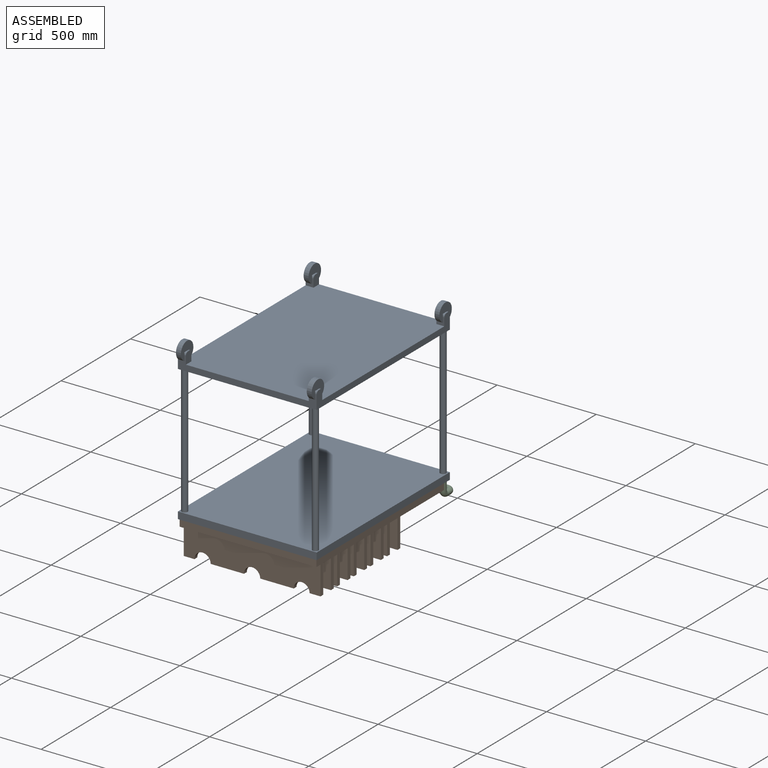
[diagram: assembled view]
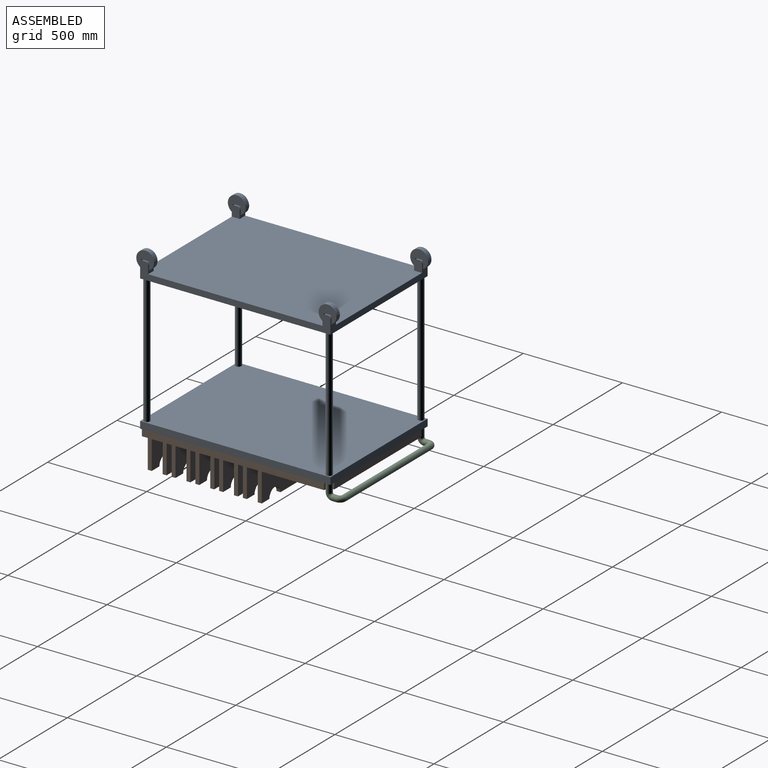
[diagram: assembled view, second angle]
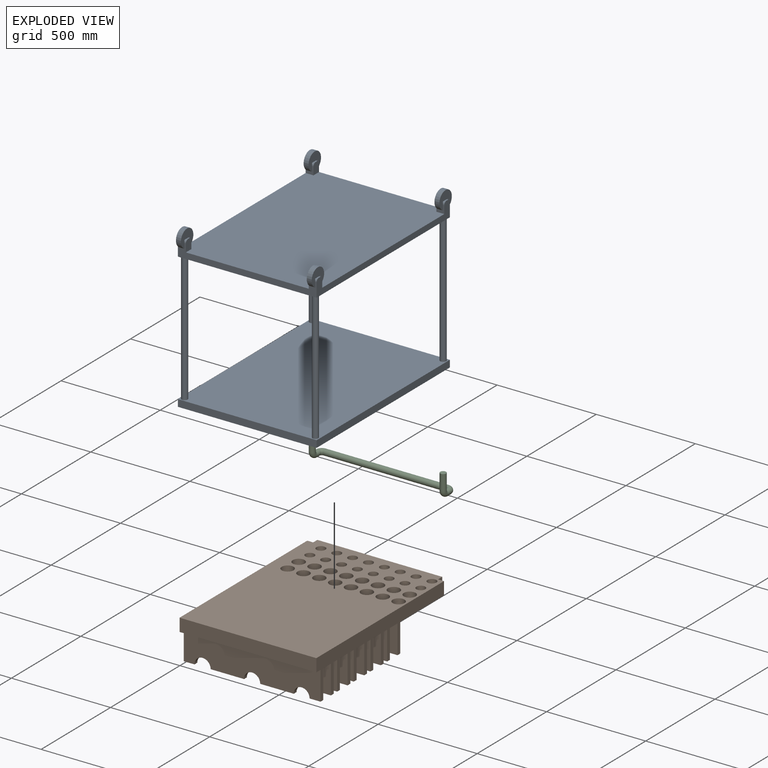
[diagram: exploded view]
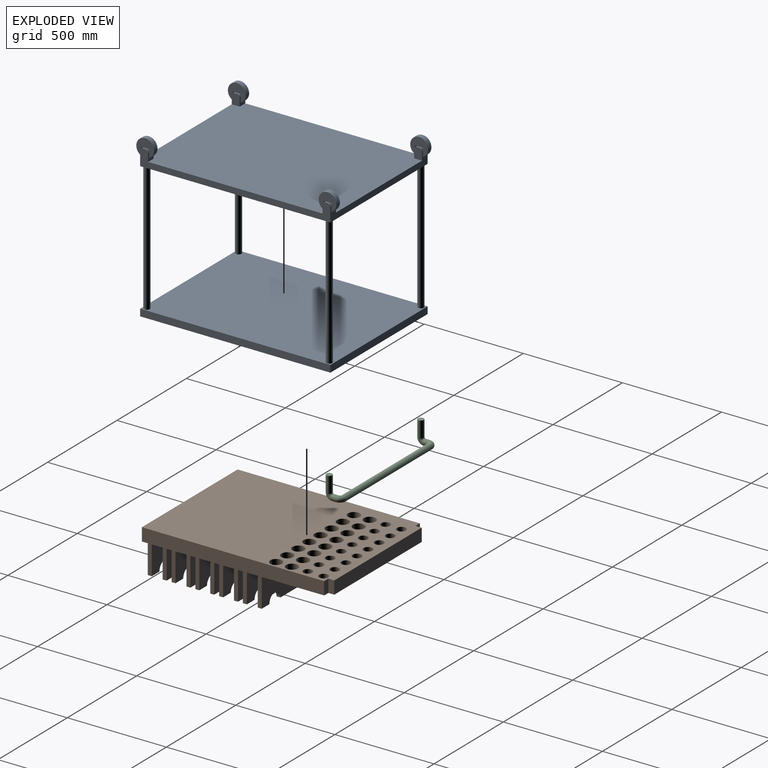
[diagram: exploded view, second angle]
ASSEMBLY  parts=3 mates=6
PART A: 73 faces, bbox 700x1010x815 mm
  f0: plane 10x7.5mm, normal (0,0,-1), area 75mm2, adj f54,f55,f56,f71
  f1: plane 700x70mm, normal (0,-1,0), area 22934.4mm2, adj f6,f26,f27,f28,f32,f34,f46,f49
  f2: plane 40x40mm, normal (0,1,0), area 967.2mm2, adj f6,f28,f54,f55,f70,f71,f72
  f3: plane 10x7.5mm, normal (0,0,-1), area 75mm2, adj f52,f57,f58,f64
  f4: plane 700x70mm, normal (0,1,0), area 22934.4mm2, adj f6,f26,f27,f28,f30,f35,f40,f42
  f5: plane 40x40mm, normal (0,-1,0), area 967.2mm2, adj f6,f28,f52,f58,f63,f64,f65
  f6: plane 960x700mm, normal (0,0,-1), area 665600mm2, adj f1,f2,f4,f5,f8,f10,f27,f28
  f7: plane 10x7.5mm, normal (0,0,-1), area 75mm2, adj f32,f33,f34,f49
  f8: plane 40x40mm, normal (0,1,0), area 967.2mm2, adj f6,f27,f32,f33,f46,f49,f50
  f9: plane 10x7.5mm, normal (0,0,-1), area 75mm2, adj f30,f35,f36,f42
  f10: plane 40x40mm, normal (0,-1,0), area 967.2mm2, adj f6,f27,f30,f36,f40,f42,f43
  f11: plane 960x700mm, normal (0,0,1), area 16500mm2, adj f12,f13,f14,f15,f17,f18,f19,f20
  f12: plane 700x35mm, normal (0,1,0), area 24500mm2, adj f11,f13,f15,f16
  f13: plane 960x35mm, normal (1,0,0), area 33600mm2, adj f11,f12,f14,f16
  f14: plane 700x35mm, normal (0,-1,0), area 24500mm2, adj f11,f13,f15,f16
  f15: plane 960x35mm, normal (-1,0,0), area 33600mm2, adj f11,f12,f14,f16
  f16: plane 960x700mm, normal (0,0,-1), area 669172.6mm2, adj f12,f13,f14,f15,f22,f23,f24,f25
  f17: plane 690x30mm, normal (0,-1,0), area 20700mm2, adj f11,f18,f20,f21
  f18: plane 950x30mm, normal (-1,0,0), area 28500mm2, adj f11,f17,f19,f21
  f19: plane 690x30mm, normal (0,1,0), area 20700mm2, adj f11,f18,f20,f21
  f20: plane 950x30mm, normal (1,0,0), area 28500mm2, adj f11,f17,f19,f21
  f21: plane 950x690mm, normal (0,0,1), area 655500mm2, adj f17,f18,f19,f20
  f22: cylinder r=15mm len=650mm, axis (0,0,1), area 61261.1mm2, adj f16,f26
  f23: cylinder r=15mm len=650mm, axis (0,0,1), area 61261.1mm2, adj f16,f26
  f24: cylinder r=15mm len=650mm, axis (0,0,1), area 61261.1mm2, adj f16,f26
  f25: cylinder r=15mm len=650mm, axis (0,0,1), area 61261.1mm2, adj f16,f26
  f26: plane 960x700mm, normal (0,0,1), area 669172.6mm2, adj f1,f4,f22,f23,f24,f25,f27,f28
  f27: plane 960x85mm, normal (-1,0,0), area 33006.9mm2, adj f1,f4,f6,f8,f10,f26,f29,f31
  f28: plane 960x85mm, normal (1,0,0), area 33006.9mm2, adj f1,f2,f4,f5,f6,f26,f51,f53
  f29: plane 10x7.5mm, normal (0,0,-1), area 75mm2, adj f27,f35,f36,f43
  f30: plane 55x40mm, normal (1,0,0), area 2103.4mm2, adj f4,f6,f9,f10,f35,f36
  f31: plane 10x7.5mm, normal (0,0,-1), area 75mm2, adj f27,f33,f34,f50
  f32: plane 55x40mm, normal (1,0,0), area 2103.4mm2, adj f1,f6,f7,f8,f33,f34
  f33: cylinder r=15mm len=40mm, axis (-1,0,0), area 942.5mm2, adj f7,f8,f27,f31,f32,f44,f45
  f34: cylinder r=15mm len=40mm, axis (-1,0,0), area 942.5mm2, adj f1,f7,f27,f31,f32,f47,f48
  f35: cylinder r=15mm len=40mm, axis (-1,0,0), area 942.5mm2, adj f4,f9,f27,f29,f30,f37,f38
  f36: cylinder r=15mm len=40mm, axis (-1,0,0), area 942.5mm2, adj f9,f10,f27,f29,f30,f39,f41
  f37: plane 25x15mm, normal (0,-1,0), area 375mm2, adj f35,f38,f42,f43
  f38: plane 25x15mm, normal (0,0,1), area 375mm2, adj f35,f37,f42,f43
  f39: plane 25x15mm, normal (0,0,1), area 375mm2, adj f36,f41,f42,f43
  f40: cylinder r=45mm len=90mm, axis (-1,0,0), area 6032.3mm2, adj f4,f10,f42,f43
  f41: plane 25x15mm, normal (0,1,0), area 375mm2, adj f36,f39,f42,f43
  f42: plane 90x85.31mm, normal (1,0,0), area 4622.9mm2, adj f4,f9,f10,f37,f38,f39,f40,f41
  f43: plane 90x85.31mm, normal (-1,0,0), area 4622.9mm2, adj f4,f10,f29,f37,f38,f39,f40,f41
  f44: plane 25x15mm, normal (0,-1,0), area 375mm2, adj f33,f45,f49,f50
  f45: plane 25x15mm, normal (0,0,1), area 375mm2, adj f33,f44,f49,f50
  f46: cylinder r=45mm len=90mm, axis (-1,0,0), area 6032.3mm2, adj f1,f8,f49,f50
  f47: plane 25x15mm, normal (0,1,0), area 375mm2, adj f34,f48,f49,f50
  f48: plane 25x15mm, normal (0,0,1), area 375mm2, adj f34,f47,f49,f50
  f49: plane 90x85.31mm, normal (1,0,0), area 4622.9mm2, adj f1,f7,f8,f44,f45,f46,f47,f48
  f50: plane 90x85.31mm, normal (-1,0,0), area 4622.9mm2, adj f1,f8,f31,f44,f45,f46,f47,f48
  f51: plane 10x7.5mm, normal (0,0,-1), area 75mm2, adj f28,f57,f58,f65
  f52: plane 55x40mm, normal (-1,0,0), area 2103.4mm2, adj f3,f4,f5,f6,f57,f58
  f53: plane 10x7.5mm, normal (0,0,-1), area 75mm2, adj f28,f55,f56,f72
  f54: plane 55x40mm, normal (-1,0,0), area 2103.4mm2, adj f0,f1,f2,f6,f55,f56
  f55: cylinder r=15mm len=40mm, axis (1,0,0), area 942.5mm2, adj f0,f2,f28,f53,f54,f66,f69
  f56: cylinder r=15mm len=40mm, axis (-1,0,0), area 942.5mm2, adj f0,f1,f28,f53,f54,f67,f68
  f57: cylinder r=15mm len=40mm, axis (-1,0,0), area 942.5mm2, adj f3,f4,f28,f51,f52,f59,f61
  f58: cylinder r=15mm len=40mm, axis (1,0,0), area 942.5mm2, adj f3,f5,f28,f51,f52,f60,f62
  f59: plane 25x15mm, normal (0,0,1), area 375mm2, adj f57,f61,f64,f65
  f60: plane 25x15mm, normal (0,1,0), area 375mm2, adj f58,f62,f64,f65
  f61: plane 25x15mm, normal (0,-1,0), area 375mm2, adj f57,f59,f64,f65
  f62: plane 25x15mm, normal (0,0,1), area 375mm2, adj f58,f60,f64,f65
  f63: cylinder r=45mm len=90mm, axis (1,0,0), area 6032.3mm2, adj f4,f5,f64,f65
  f64: plane 90x85.31mm, normal (-1,0,0), area 4622.9mm2, adj f3,f4,f5,f59,f60,f61,f62,f63
  f65: plane 90x85.31mm, normal (1,0,0), area 4622.9mm2, adj f4,f5,f51,f59,f60,f61,f62,f63
  f66: plane 25x15mm, normal (0,0,1), area 375mm2, adj f55,f69,f71,f72
  f67: plane 25x15mm, normal (0,0,1), area 375mm2, adj f56,f68,f71,f72
  f68: plane 25x15mm, normal (0,1,0), area 375mm2, adj f56,f67,f71,f72
  f69: plane 25x15mm, normal (0,-1,0), area 375mm2, adj f55,f66,f71,f72
  f70: cylinder r=45mm len=90mm, axis (1,0,0), area 6032.3mm2, adj f1,f2,f71,f72
  f71: plane 90x85.31mm, normal (-1,0,0), area 4622.9mm2, adj f0,f1,f2,f66,f67,f68,f69,f70
  f72: plane 90x85.31mm, normal (1,0,0), area 4622.9mm2, adj f1,f2,f53,f66,f67,f68,f69,f70
PART B: 142 faces, bbox 690x950x210 mm
  f0: cylinder r=40.88mm len=81.75mm, axis (0,1,0), area 2568.3mm2, adj f45,f46,f47,f116
  f1: cylinder r=40.88mm len=81.75mm, axis (0,1,0), area 2568.3mm2, adj f46,f47,f115,f116
  f2: cylinder r=40mm len=80mm, axis (0,1,0), area 2513.3mm2, adj f22,f23,f117,f118
  f3: cylinder r=40.88mm len=81.75mm, axis (0,1,0), area 2568.3mm2, adj f8,f48,f49,f114
  f4: plane 690x345mm, normal (0,0,1), area 165564.2mm2, adj f5,f9,f28,f69,f70,f71,f72,f73
  f5: plane 630x65mm, normal (0,1,0), area 40950mm2, adj f4,f68,f70,f72
  f6: plane 690x25mm, normal (0,0,1), area 17250mm2, adj f9,f19,f49,f69
  f7: plane 690x30mm, normal (0,0,1), area 20700mm2, adj f9,f11,f22,f69
  f8: plane 690x145mm, normal (0,1,0), area 92287.5mm2, adj f3,f9,f10,f48,f69,f110,f111,f113
  f9: plane 920x210mm, normal (-1,0,0), area 88800mm2, adj f4,f6,f7,f8,f10,f11,f12,f13
  f10: plane 690x55mm, normal (0,0,1), area 37950mm2, adj f8,f9,f47,f69
  f11: plane 690x65mm, normal (0,-1,0), area 44850mm2, adj f7,f9,f68,f69
  f12: plane 690x25mm, normal (0,0,1), area 17250mm2, adj f9,f43,f46,f69
  f13: plane 690x55mm, normal (0,0,1), area 37950mm2, adj f9,f41,f44,f69
  f14: cylinder r=40mm len=80mm, axis (0,1,0), area 2513.3mm2, adj f19,f20,f120,f121
  f15: cylinder r=40.88mm len=81.75mm, axis (0,1,0), area 2568.3mm2, adj f21,f22,f23,f119
  f16: cylinder r=40.88mm len=81.75mm, axis (0,1,0), area 2568.3mm2, adj f19,f20,f121,f122
  f17: cylinder r=40.88mm len=81.75mm, axis (0,1,0), area 2568.3mm2, adj f18,f19,f20,f122
  f18: plane 54.12x20mm, normal (0,0,1), area 1082.5mm2, adj f17,f19,f20,f69
  f19: plane 690x145mm, normal (0,1,0), area 92287.5mm2, adj f6,f9,f14,f16,f17,f18,f69,f120
  f20: plane 690x145mm, normal (0,-1,0), area 92287.5mm2, adj f9,f14,f16,f17,f18,f69,f120,f121
  f21: plane 54.12x20mm, normal (0,0,1), area 1082.5mm2, adj f15,f22,f23,f69
  f22: plane 690x145mm, normal (0,-1,0), area 92287.5mm2, adj f2,f7,f9,f15,f21,f69,f117,f118
  f23: plane 690x145mm, normal (0,1,0), area 92287.5mm2, adj f2,f9,f15,f21,f69,f117,f118,f119
  f24: cylinder r=40mm len=80mm, axis (0,1,0), area 2513.3mm2, adj f28,f29,f127,f128
  f25: cylinder r=40.88mm len=81.75mm, axis (0,1,0), area 2568.3mm2, adj f28,f29,f128,f129
  f26: cylinder r=40.88mm len=81.75mm, axis (0,1,0), area 2568.3mm2, adj f27,f28,f29,f129
  f27: plane 54.12x20mm, normal (0,0,1), area 1082.5mm2, adj f26,f28,f29,f69
  f28: plane 690x145mm, normal (0,1,0), area 92287.5mm2, adj f4,f9,f24,f25,f26,f27,f69,f127
  f29: plane 690x145mm, normal (0,-1,0), area 92287.5mm2, adj f9,f24,f25,f26,f27,f69,f127,f128
  f30: plane 54.12x20mm, normal (0,0,1), area 1082.5mm2, adj f31,f32,f69,f137
  f31: plane 690x145mm, normal (0,-1,0), area 92287.5mm2, adj f9,f30,f69,f124,f125,f126,f131,f135
  f32: plane 690x145mm, normal (0,1,0), area 92287.5mm2, adj f9,f30,f69,f124,f125,f126,f130,f135
  f33: plane 54.12x20mm, normal (0,0,1), area 1082.5mm2, adj f34,f35,f69,f108
  f34: plane 690x145mm, normal (0,1,0), area 92287.5mm2, adj f9,f33,f62,f63,f64,f69,f106,f107
  f35: plane 690x145mm, normal (0,-1,0), area 92287.5mm2, adj f9,f33,f62,f63,f64,f69,f106,f107
  f36: plane 54.12x20mm, normal (0,0,1), area 1082.5mm2, adj f37,f38,f69,f140
  f37: plane 690x145mm, normal (0,-1,0), area 92287.5mm2, adj f9,f36,f65,f66,f67,f69,f133,f138
  f38: plane 690x145mm, normal (0,1,0), area 92287.5mm2, adj f9,f36,f65,f66,f67,f69,f132,f138
  f39: plane 54.12x20mm, normal (0,0,1), area 1082.5mm2, adj f40,f41,f59,f69
  f40: plane 690x145mm, normal (0,1,0), area 92287.5mm2, adj f9,f39,f50,f51,f53,f55,f57,f59
  f41: plane 690x145mm, normal (0,-1,0), area 92287.5mm2, adj f9,f13,f39,f50,f51,f53,f55,f57
  f42: plane 54.12x20mm, normal (0,0,1), area 1082.5mm2, adj f43,f44,f58,f69
  f43: plane 690x145mm, normal (0,-1,0), area 92287.5mm2, adj f9,f12,f42,f52,f54,f56,f58,f60
  f44: plane 690x145mm, normal (0,1,0), area 92287.5mm2, adj f9,f13,f42,f52,f54,f56,f58,f60
  f45: plane 54.12x20mm, normal (0,0,1), area 1082.5mm2, adj f0,f46,f47,f69
  f46: plane 690x145mm, normal (0,1,0), area 92287.5mm2, adj f0,f1,f9,f12,f45,f69,f109,f112
  f47: plane 690x145mm, normal (0,-1,0), area 92287.5mm2, adj f0,f1,f9,f10,f45,f69,f109,f112
  f48: plane 54.12x20mm, normal (0,0,1), area 1082.5mm2, adj f3,f8,f49,f69
  f49: plane 690x145mm, normal (0,-1,0), area 92287.5mm2, adj f3,f6,f9,f48,f69,f110,f111,f113
  f50: plane 168.25x20mm, normal (0,0,1), area 3364.9mm2, adj f40,f41,f57,f59
  f51: plane 169.12x20mm, normal (0,0,1), area 3382.5mm2, adj f40,f41,f55,f57
  f52: plane 55x20mm, normal (0,0,1), area 1100mm2, adj f9,f43,f44,f54
  f53: plane 55x20mm, normal (0,0,1), area 1100mm2, adj f9,f40,f41,f55
  f54: cylinder r=40mm len=80mm, axis (0,1,0), area 2513.3mm2, adj f43,f44,f52,f60
  f55: cylinder r=40mm len=80mm, axis (0,1,0), area 2513.3mm2, adj f40,f41,f51,f53
  f56: cylinder r=40.88mm len=81.75mm, axis (0,1,0), area 2568.3mm2, adj f43,f44,f60,f61
  f57: cylinder r=40.88mm len=81.75mm, axis (0,1,0), area 2568.3mm2, adj f40,f41,f50,f51
  f58: cylinder r=40.88mm len=81.75mm, axis (0,1,0), area 2568.3mm2, adj f42,f43,f44,f61
  f59: cylinder r=40.88mm len=81.75mm, axis (0,1,0), area 2568.3mm2, adj f39,f40,f41,f50
  f60: plane 169.12x20mm, normal (0,0,1), area 3382.5mm2, adj f43,f44,f54,f56
  f61: plane 168.25x20mm, normal (0,0,1), area 3364.9mm2, adj f43,f44,f56,f58
  f62: plane 168.25x20mm, normal (0,0,1), area 3364.9mm2, adj f34,f35,f107,f108
  f63: plane 169.12x20mm, normal (0,0,1), area 3382.5mm2, adj f34,f35,f106,f107
  f64: plane 55x20mm, normal (0,0,1), area 1100mm2, adj f9,f34,f35,f106
  f65: plane 168.25x20mm, normal (0,0,1), area 3364.9mm2, adj f37,f38,f139,f140
  f66: plane 169.12x20mm, normal (0,0,1), area 3382.5mm2, adj f37,f38,f138,f139
  f67: plane 55x20mm, normal (0,0,1), area 1100mm2, adj f9,f37,f38,f138
  f68: plane 950x690mm, normal (0,0,-1), area 583014.2mm2, adj f5,f9,f11,f69,f70,f71,f72,f73
  f69: plane 920x210mm, normal (1,0,0), area 88800mm2, adj f4,f6,f7,f8,f10,f11,f12,f13
  f70: plane 65x30mm, normal (-1,0,0), area 1950mm2, adj f4,f5,f68,f71
  f71: plane 65x30mm, normal (0,1,0), area 1950mm2, adj f4,f9,f68,f70
  f72: plane 65x30mm, normal (1,0,0), area 1950mm2, adj f4,f5,f68,f73
  f73: plane 65x30mm, normal (0,1,0), area 1950mm2, adj f4,f68,f69,f72
  f74: cylinder r=30mm len=65mm, axis (0,0,-1), area 12252.2mm2, adj f4,f68
  f75: cylinder r=22.5mm len=65mm, axis (0,0,-1), area 9189.2mm2, adj f4,f68
  f76: cylinder r=22.5mm len=65mm, axis (0,0,-1), area 9189.2mm2, adj f4,f68
  f77: cylinder r=22.5mm len=65mm, axis (0,0,-1), area 9189.2mm2, adj f4,f68
  f78: cylinder r=30mm len=65mm, axis (0,0,-1), area 12252.2mm2, adj f4,f68
  f79: cylinder r=30mm len=65mm, axis (0,0,-1), area 12252.2mm2, adj f4,f68
  f80: cylinder r=22.5mm len=65mm, axis (0,0,-1), area 9189.2mm2, adj f4,f68
  f81: cylinder r=22.5mm len=65mm, axis (0,0,-1), area 9189.2mm2, adj f4,f68
  f82: cylinder r=30mm len=65mm, axis (0,0,-1), area 12252.2mm2, adj f4,f68
  f83: cylinder r=30mm len=65mm, axis (0,0,-1), area 12252.2mm2, adj f4,f68
  f84: cylinder r=22.5mm len=65mm, axis (0,0,-1), area 9189.2mm2, adj f4,f68
  f85: cylinder r=22.5mm len=65mm, axis (0,0,-1), area 9189.2mm2, adj f4,f68
  f86: cylinder r=30mm len=65mm, axis (0,0,-1), area 12252.2mm2, adj f4,f68
  f87: cylinder r=30mm len=65mm, axis (0,0,-1), area 12252.2mm2, adj f4,f68
  f88: cylinder r=22.5mm len=65mm, axis (0,0,-1), area 9189.2mm2, adj f4,f68
  f89: cylinder r=22.5mm len=65mm, axis (0,0,-1), area 9189.2mm2, adj f4,f68
  f90: cylinder r=30mm len=65mm, axis (0,0,-1), area 12252.2mm2, adj f4,f68
  f91: cylinder r=30mm len=65mm, axis (0,0,-1), area 12252.2mm2, adj f4,f68
  f92: cylinder r=22.5mm len=65mm, axis (0,0,-1), area 9189.2mm2, adj f4,f68
  f93: cylinder r=22.5mm len=65mm, axis (0,0,-1), area 9189.2mm2, adj f4,f68
  f94: cylinder r=30mm len=65mm, axis (0,0,-1), area 12252.2mm2, adj f4,f68
  f95: cylinder r=30mm len=65mm, axis (0,0,-1), area 12252.2mm2, adj f4,f68
  f96: cylinder r=22.5mm len=65mm, axis (0,0,-1), area 9189.2mm2, adj f4,f68
  f97: cylinder r=22.5mm len=65mm, axis (0,0,-1), area 9189.2mm2, adj f4,f68
  f98: cylinder r=30mm len=65mm, axis (0,0,-1), area 12252.2mm2, adj f4,f68
  f99: cylinder r=30mm len=65mm, axis (0,0,-1), area 12252.2mm2, adj f4,f68
  f100: cylinder r=22.5mm len=65mm, axis (0,0,-1), area 9189.2mm2, adj f4,f68
  f101: cylinder r=22.5mm len=65mm, axis (0,0,-1), area 9189.2mm2, adj f4,f68
  f102: cylinder r=30mm len=65mm, axis (0,0,-1), area 12252.2mm2, adj f4,f68
  f103: cylinder r=30mm len=65mm, axis (0,0,-1), area 12252.2mm2, adj f4,f68
  f104: cylinder r=30mm len=65mm, axis (0,0,-1), area 12252.2mm2, adj f4,f68
  f105: cylinder r=22.5mm len=65mm, axis (0,0,-1), area 9189.2mm2, adj f4,f68
  f106: cylinder r=40mm len=80mm, axis (0,1,0), area 2513.3mm2, adj f34,f35,f63,f64
  f107: cylinder r=40.88mm len=81.75mm, axis (0,1,0), area 2568.3mm2, adj f34,f35,f62,f63
  f108: cylinder r=40.88mm len=81.75mm, axis (0,1,0), area 2568.3mm2, adj f33,f34,f35,f62
  f109: cylinder r=40mm len=80mm, axis (0,1,0), area 2513.3mm2, adj f46,f47,f112,f115
  f110: cylinder r=40mm len=80mm, axis (0,1,0), area 2513.3mm2, adj f8,f49,f113,f141
  f111: cylinder r=40.88mm len=81.75mm, axis (0,1,0), area 2568.3mm2, adj f8,f49,f113,f114
  f112: plane 55x20mm, normal (0,0,1), area 1100mm2, adj f9,f46,f47,f109
  f113: plane 169.12x20mm, normal (0,0,1), area 3382.5mm2, adj f8,f49,f110,f111
  f114: plane 168.25x20mm, normal (0,0,1), area 3364.9mm2, adj f3,f8,f49,f111
  f115: plane 169.12x20mm, normal (0,0,1), area 3382.5mm2, adj f1,f46,f47,f109
  f116: plane 168.25x20mm, normal (0,0,1), area 3364.9mm2, adj f0,f1,f46,f47
  f117: plane 55x20mm, normal (0,0,1), area 1100mm2, adj f2,f9,f22,f23
  f118: plane 169.12x20mm, normal (0,0,1), area 3382.5mm2, adj f2,f22,f23,f134
  f119: plane 168.25x20mm, normal (0,0,1), area 3364.9mm2, adj f15,f22,f23,f134
  f120: plane 55x20mm, normal (0,0,1), area 1100mm2, adj f9,f14,f19,f20
  f121: plane 169.12x20mm, normal (0,0,1), area 3382.5mm2, adj f14,f16,f19,f20
  f122: plane 168.25x20mm, normal (0,0,1), area 3364.9mm2, adj f16,f17,f19,f20
  f123: plane 690x55mm, normal (0,0,1), area 37950mm2, adj f9,f20,f23,f69
  f124: plane 55x20mm, normal (0,0,1), area 1100mm2, adj f9,f31,f32,f135
  f125: plane 169.12x20mm, normal (0,0,1), area 3382.5mm2, adj f31,f32,f135,f136
  f126: plane 168.25x20mm, normal (0,0,1), area 3364.9mm2, adj f31,f32,f136,f137
  f127: plane 55x20mm, normal (0,0,1), area 1100mm2, adj f9,f24,f28,f29
  f128: plane 169.12x20mm, normal (0,0,1), area 3382.5mm2, adj f24,f25,f28,f29
  f129: plane 168.25x20mm, normal (0,0,1), area 3364.9mm2, adj f25,f26,f28,f29
  f130: plane 690x55mm, normal (0,0,1), area 37950mm2, adj f9,f29,f32,f69
  f131: plane 690x25mm, normal (0,0,1), area 17250mm2, adj f9,f31,f34,f69
  f132: plane 690x55mm, normal (0,0,1), area 37950mm2, adj f9,f35,f38,f69
  f133: plane 690x25mm, normal (0,0,1), area 17250mm2, adj f9,f37,f40,f69
  f134: cylinder r=40.88mm len=81.75mm, axis (0,1,0), area 2568.3mm2, adj f22,f23,f118,f119
  f135: cylinder r=40mm len=80mm, axis (0,1,0), area 2513.3mm2, adj f31,f32,f124,f125
  f136: cylinder r=40.88mm len=81.75mm, axis (0,1,0), area 2568.3mm2, adj f31,f32,f125,f126
  f137: cylinder r=40.88mm len=81.75mm, axis (0,1,0), area 2568.3mm2, adj f30,f31,f32,f126
  f138: cylinder r=40mm len=80mm, axis (0,1,0), area 2513.3mm2, adj f37,f38,f66,f67
  f139: cylinder r=40.88mm len=81.75mm, axis (0,1,0), area 2568.3mm2, adj f37,f38,f65,f66
  f140: cylinder r=40.88mm len=81.75mm, axis (0,1,0), area 2568.3mm2, adj f36,f37,f38,f65
  f141: plane 55x20mm, normal (0,0,1), area 1100mm2, adj f8,f9,f49,f110
PART C: 11 faces, bbox 695.8x95.8x117.9 mm
  f0: plane 30x30mm, normal (0,0,-1), area 706.9mm2, adj f1
  f1: cylinder r=15mm len=80mm, axis (0,0,1), area 7539.8mm2, adj f0,f2
  f2: torus R=20mm, axis (-1,0,0), area 2960.9mm2, adj f1,f3
  f3: cylinder r=15mm len=30mm, axis (0,1,0), area 1885mm2, adj f2,f4
  f4: torus R=20mm, axis (0,0,-1), area 2960.9mm2, adj f3,f5
  f5: cylinder r=15mm len=620mm, axis (1,0,0), area 58433.6mm2, adj f4,f10
  f6: plane 30x30mm, normal (0,0,-1), area 706.9mm2, adj f7
  f7: cylinder r=15mm len=80mm, axis (0,0,1), area 7539.8mm2, adj f6,f8
  f8: torus R=20mm, axis (1,0,0), area 2960.9mm2, adj f7,f9
  f9: cylinder r=15mm len=30mm, axis (0,1,0), area 1885mm2, adj f8,f10
  f10: torus R=20mm, axis (0,0,-1), area 2960.9mm2, adj f5,f9
PLACE A rot(axis=(0,1,0),180deg) t=(-136.79,446.84,146.68)mm
PLACE B rot(axis=(0,1,0),180deg) t=(-136.79,446.84,171.68)mm fixed
PLACE C rot(axis=(0,1,0),180deg) t=(-136.79,446.84,146.68)mm
MATE planar B.f11 <-> A.f19  axis (0,-1,0) through (-136.79,-28.16,139.18)mm
MATE planar B.f9 <-> A.f20  axis (1,0,0) through (208.21,385.3,104.89)mm
MATE planar B.f68 <-> A.f21  axis (0,0,1) through (-139.82,412.37,171.68)mm
MATE cylindrical C.f7 <-> A.f23  axis (0,0,-1) through (-466.79,906.84,136.68)mm
MATE cylindrical A.f22 <-> C.f1  axis (0,0,-1) through (193.21,906.84,501.68)mm
MATE planar C.f7 <-> A.f16  axis (0,0,-1) through (-466.79,906.84,176.68)mm
